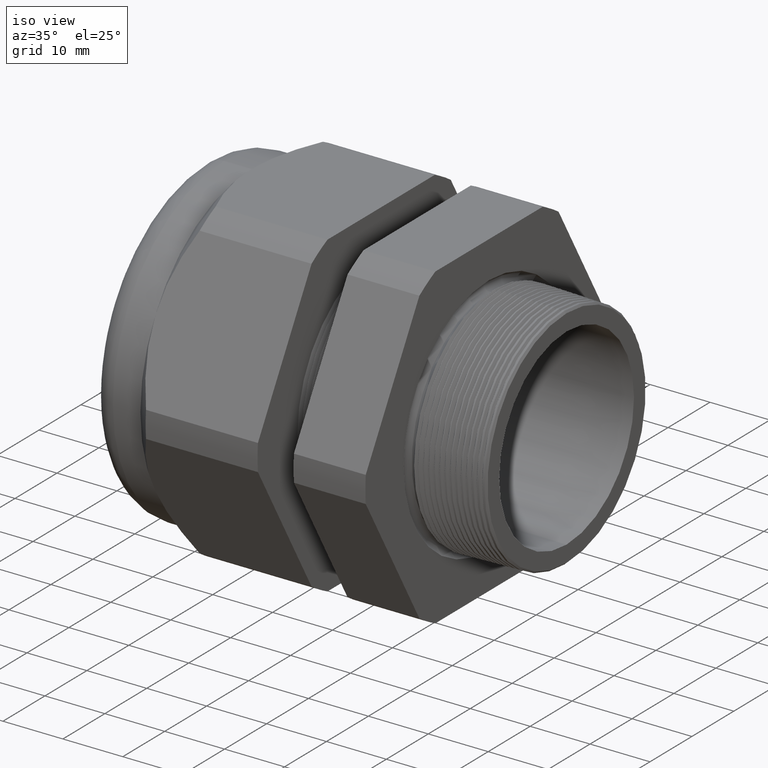
[diagram: clean part render]
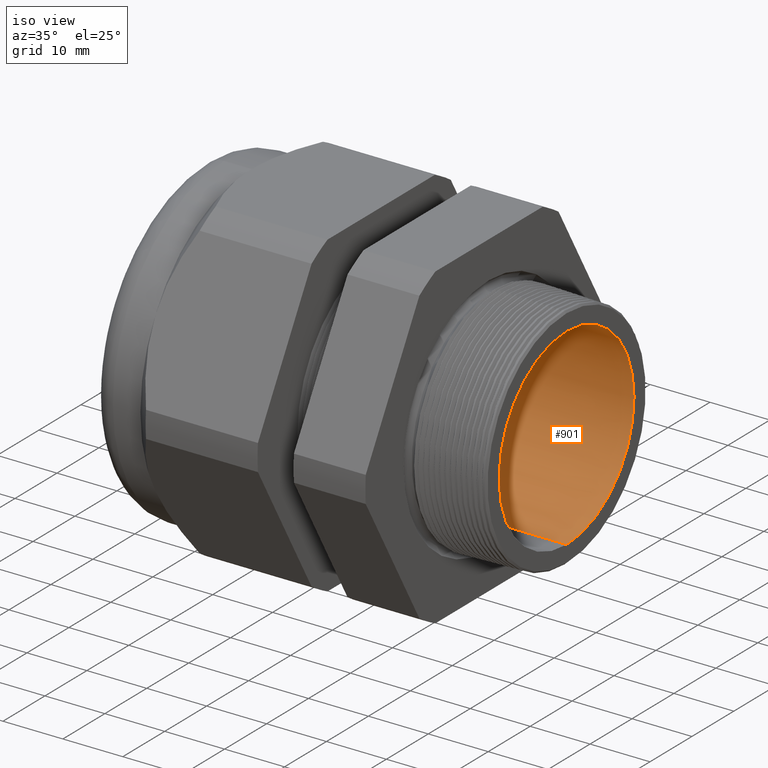
[diagram: same view with one face highlighted and labeled with its STEP entity id]
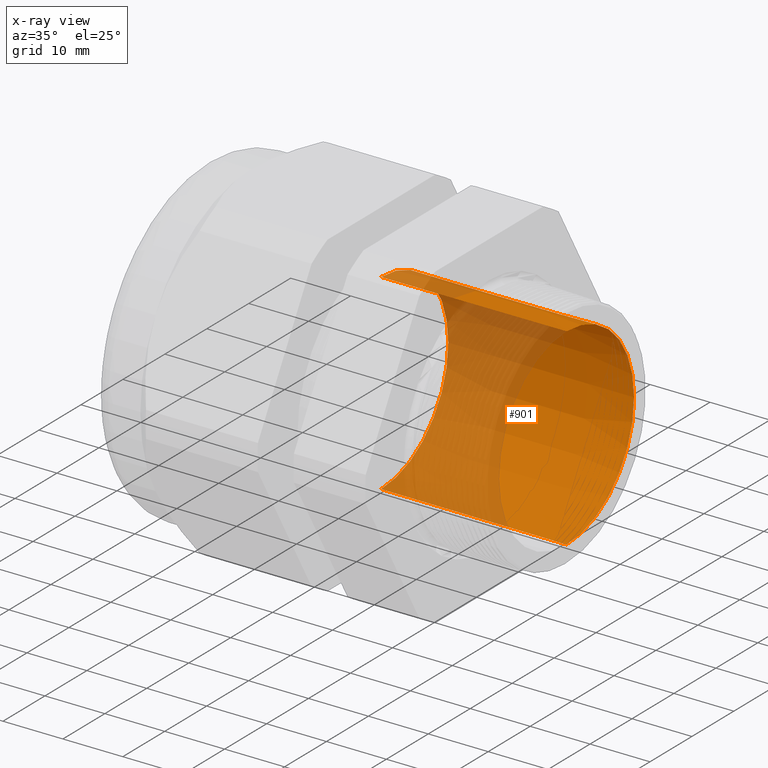
[diagram: x-ray of the same camera — body ghosted, the highlighted face saturated]
A machine part, iso view. The second image highlights one B-rep face of the part: STEP entity #901.
The next image is the same camera in x-ray: the body ghosted, the highlighted face saturated — about 45% of this face is hidden behind the body in this view.
In plain terms, the highlighted conical surface has half-angle 0.145 deg.
Its self-contained STEP definition (entity closure, byte-faithful):
#854 = EDGE_CURVE ( 'NONE', #4876, #4918, #2503, .T. ) ;
#901 = ADVANCED_FACE ( 'NONE', ( #2616 ), #2615, .F. ) ;
#902 = EDGE_LOOP ( 'NONE', ( #903, #904, #905, #906 ) ) ;
#903 = ORIENTED_EDGE ( 'NONE', *, *, #4910, .F. ) ;
#904 = ORIENTED_EDGE ( 'NONE', *, *, #854, .F. ) ;
#905 = ORIENTED_EDGE ( 'NONE', *, *, #5069, .T. ) ;
#906 = ORIENTED_EDGE ( 'NONE', *, *, #907, .T. ) ;
#907 = EDGE_CURVE ( 'NONE', #5086, #4892, #2609, .T. ) ;
#2496 = DIRECTION ( 'NONE',  ( 1.000000000000000000, 0.0000000000000000000, 0.0000000000000000000 ) ) ;
#2497 = CARTESIAN_POINT ( 'NONE',  ( -1.018802799999999800, 0.0000000000000000000, 0.0000000000000000000 ) ) ;
#2498 = AXIS2_PLACEMENT_3D ( 'NONE', #2497, #2496, #2558 ) ;
#2503 = CIRCLE ( 'NONE', #2498, 0.6300000000000000000 ) ;
#2558 = DIRECTION ( 'NONE',  ( 0.0000000000000000000, 0.0000000000000000000, -1.000000000000000000 ) ) ;
#2606 = DIRECTION ( 'NONE',  ( 0.0000000000000000000, 0.0000000000000000000, -1.000000000000000000 ) ) ;
#2607 = DIRECTION ( 'NONE',  ( 1.000000000000000000, 0.0000000000000000000, 0.0000000000000000000 ) ) ;
#2608 = AXIS2_PLACEMENT_3D ( 'NONE', #2614, #2607, #2606 ) ;
#2609 = CIRCLE ( 'NONE', #2608, 0.6330845254709034400 ) ;
#2610 = DIRECTION ( 'NONE',  ( 0.0000000000000000000, 0.0000000000000000000, -1.000000000000000000 ) ) ;
#2611 = DIRECTION ( 'NONE',  ( 1.000000000000000000, 0.0000000000000000000, 0.0000000000000000000 ) ) ;
#2612 = CARTESIAN_POINT ( 'NONE',  ( -1.018802799999999800, 0.0000000000000000000, 0.0000000000000000000 ) ) ;
#2613 = AXIS2_PLACEMENT_3D ( 'NONE', #2612, #2611, #2610 ) ;
#2614 = CARTESIAN_POINT ( 'NONE',  ( 0.2000000000000000400, 0.0000000000000000000, 0.0000000000000000000 ) ) ;
#2615 = CONICAL_SURFACE ( 'NONE', #2613, 0.6300000000000000000, 0.002530777649680375600 ) ;
#2616 = FACE_OUTER_BOUND ( 'NONE', #902, .T. ) ;
#3197 = CARTESIAN_POINT ( 'NONE',  ( -1.018802799999999800, 0.0000000000000000000, -0.6300000000000000000 ) ) ;
#3257 = DIRECTION ( 'NONE',  ( 0.9999967975839531000, 3.099305439608670900E-019, 0.002530774948145480100 ) ) ;
#3258 = VECTOR ( 'NONE', #3257, 39.37007874015748100 ) ;
#3259 = CARTESIAN_POINT ( 'NONE',  ( -1.018802799999999800, 7.715274834628325400E-017, 0.6300000000000000000 ) ) ;
#3260 = LINE ( 'NONE', #3259, #3258 ) ;
#3285 = CARTESIAN_POINT ( 'NONE',  ( 0.2000000000000000400, 7.753049377076629200E-017, 0.6330845254709034400 ) ) ;
#3309 = CARTESIAN_POINT ( 'NONE',  ( -1.018802799999999800, 7.715274834628325400E-017, 0.6300000000000000000 ) ) ;
#3559 = DIRECTION ( 'NONE',  ( 0.9999967975839531000, 0.0000000000000000000, -0.002530774948145480100 ) ) ;
#3560 = VECTOR ( 'NONE', #3559, 39.37007874015748100 ) ;
#3561 = CARTESIAN_POINT ( 'NONE',  ( -1.018802799999999800, 0.0000000000000000000, -0.6300000000000000000 ) ) ;
#3562 = LINE ( 'NONE', #3561, #3560 ) ;
#3588 = CARTESIAN_POINT ( 'NONE',  ( 0.2000000000000000400, 0.0000000000000000000, -0.6330845254709034400 ) ) ;
#4876 = VERTEX_POINT ( 'NONE', #3197 ) ;
#4892 = VERTEX_POINT ( 'NONE', #3285 ) ;
#4910 = EDGE_CURVE ( 'NONE', #4918, #4892, #3260, .T. ) ;
#4918 = VERTEX_POINT ( 'NONE', #3309 ) ;
#5069 = EDGE_CURVE ( 'NONE', #4876, #5086, #3562, .T. ) ;
#5086 = VERTEX_POINT ( 'NONE', #3588 ) ;